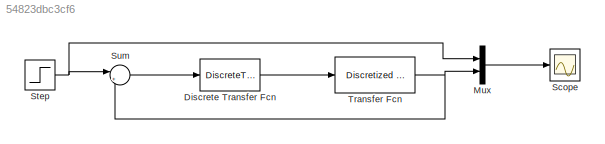
MODEL slx_54823dbc3cf6
KIND model
CONFIG AbsTol = auto
CONFIG EnableMultiTasking = off
CONFIG FixedStep = 0.001
CONFIG MaxStep = auto
CONFIG MinStep = auto
CONFIG RelTol = 1e-3
CONFIG SampleTimeConstraint = Unconstrained
CONFIG Solver = ode5
CONFIG SolverName = ode5
CONFIG StartTime = 0.0
CONFIG StopTime = 10.0
BLOCK [DiscreteTransferFcn] Discrete Transfer Fcn
  Denominator = [1 0.993]
  InputPortMap = u0
  Numerator = 402738*[1 -0.98]
  Ports = [1, 1]
  SampleTime = 0.001
BLOCK [Mux] Mux
  DisplayOption = bar
  Inputs = 2
  Ports = [2, 1]
BLOCK [Scope] Scope
  Floating = off
  NumInputPorts = 1
  Ports = [1]
  ScopeSpecificationString = Simulink.scopes.TimeScopeBlockCfg('CurrentConfiguration', extmgr.ConfigurationSet(extmgr.Configuration('Core','General UI',true,'FigureColor',[1 1 1]),extmgr.Configuration('Core','Source UI',true),extmgr.Configuration('Sources','WiredSimulink',true,'SampleTime','0.001'),extmgr.Configuration('Visuals','Time Domain',true,'SerializedDisplays',{struct('MinYLimReal','0.99912','MaxYLimReal','1.00101','Y...<+1790ch>
BLOCK [Step] Step
  SampleTime = 0.001
BLOCK [Sum] Sum
  IconShape = round
  InputSameDT = off
  Inputs = |+-
  OutDataTypeStr = Inherit: Inherit via internal rule
  Ports = [2, 1]
  SaturateOnIntegerOverflow = off
BLOCK [Reference] Transfer Fcn  REF=discretizing/Discretized  (lib defined in mdl_5048aa1cd587)
Transfer Fcn
  Ports = [1, 1]
  SourceBlock = discretizing/Discretized\nTransfer Fcn
  SourceType = DiscretizedTransferFcn
LINE Discrete Transfer Fcn:1 -> Transfer Fcn:1
LINE Mux:1 -> Scope:1
NET Step:1 -> Mux:1, Sum:1
LINE Sum:1 -> Discrete Transfer Fcn:1
NET Transfer Fcn:1 -> Mux:2, Sum:2
note: NET lines group one-source signal fan-out (src -> all destinations, sorted); 1:1 wires keep LINE
